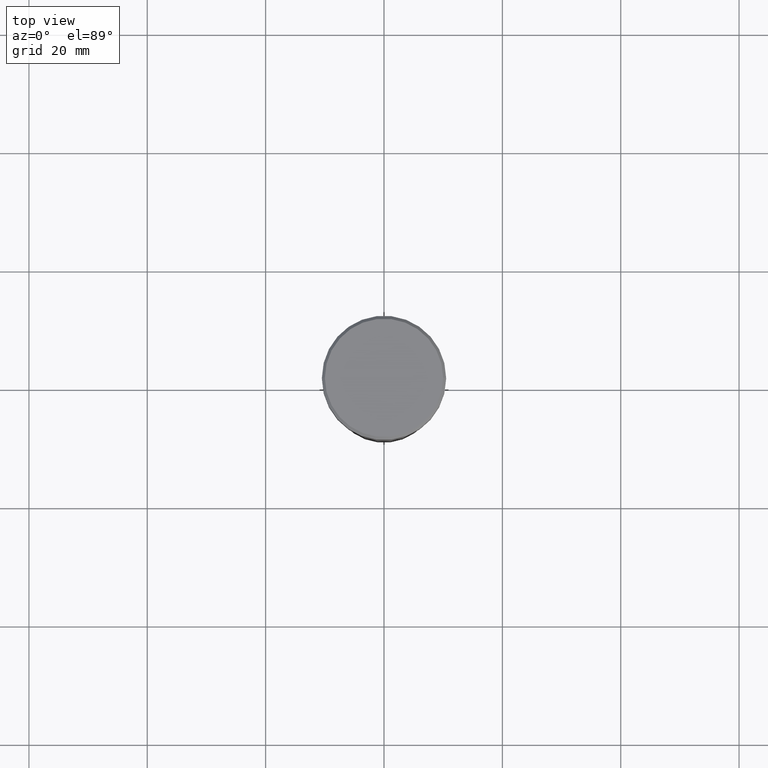
[diagram: clean part render]
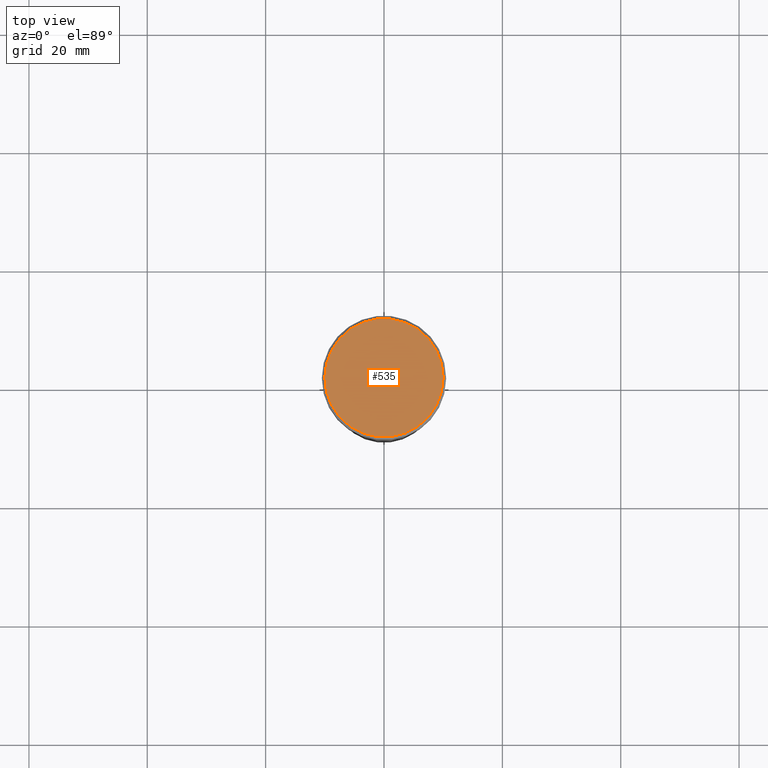
[diagram: same view with one face highlighted and labeled with its STEP entity id]
A machine part, top view. The second image highlights one B-rep face of the part: STEP entity #535.
In plain terms, the highlighted planar face has unit normal (0, -0, 1).
Its self-contained STEP definition (entity closure, byte-faithful):
#22 = PLANE ( 'NONE',  #130 ) ;
#31 = AXIS2_PLACEMENT_3D ( 'NONE', #509, #87, #227 ) ;
#40 = CIRCLE ( 'NONE', #381, 10.00000000000000178 ) ;
#43 = CARTESIAN_POINT ( 'NONE',  ( -10.00000000000000178, 0.000000000000000000, 0.000000000000000000 ) ) ;
#87 = DIRECTION ( 'NONE',  ( -0.000000000000000000, -0.000000000000000000, 1.000000000000000000 ) ) ;
#107 = FACE_OUTER_BOUND ( 'NONE', #345, .T. ) ;
#108 = VERTEX_POINT ( 'NONE', #43 ) ;
#113 = ORIENTED_EDGE ( 'NONE', *, *, #412, .T. ) ;
#130 = AXIS2_PLACEMENT_3D ( 'NONE', #533, #208, #298 ) ;
#181 = EDGE_CURVE ( 'NONE', #428, #108, #363, .T. ) ;
#208 = DIRECTION ( 'NONE',  ( 0.000000000000000000, -0.000000000000000000, 1.000000000000000000 ) ) ;
#227 = DIRECTION ( 'NONE',  ( 1.000000000000000000, 0.000000000000000000, 0.000000000000000000 ) ) ;
#249 = CARTESIAN_POINT ( 'NONE',  ( 0.000000000000000000, 0.000000000000000000, 0.000000000000000000 ) ) ;
#298 = DIRECTION ( 'NONE',  ( 1.000000000000000000, 0.000000000000000000, 0.000000000000000000 ) ) ;
#301 = CARTESIAN_POINT ( 'NONE',  ( 10.00000000000000178, 1.255262969126037241E-15, 0.000000000000000000 ) ) ;
#345 = EDGE_LOOP ( 'NONE', ( #113, #547 ) ) ;
#363 = CIRCLE ( 'NONE', #31, 10.00000000000000178 ) ;
#381 = AXIS2_PLACEMENT_3D ( 'NONE', #249, #436, #580 ) ;
#412 = EDGE_CURVE ( 'NONE', #108, #428, #40, .T. ) ;
#428 = VERTEX_POINT ( 'NONE', #301 ) ;
#436 = DIRECTION ( 'NONE',  ( -0.000000000000000000, -0.000000000000000000, 1.000000000000000000 ) ) ;
#509 = CARTESIAN_POINT ( 'NONE',  ( 0.000000000000000000, 0.000000000000000000, 0.000000000000000000 ) ) ;
#533 = CARTESIAN_POINT ( 'NONE',  ( 0.000000000000000000, 0.000000000000000000, 0.000000000000000000 ) ) ;
#535 = ADVANCED_FACE ( 'NONE', ( #107 ), #22, .T. ) ;
#547 = ORIENTED_EDGE ( 'NONE', *, *, #181, .T. ) ;
#580 = DIRECTION ( 'NONE',  ( 1.000000000000000000, 0.000000000000000000, 0.000000000000000000 ) ) ;